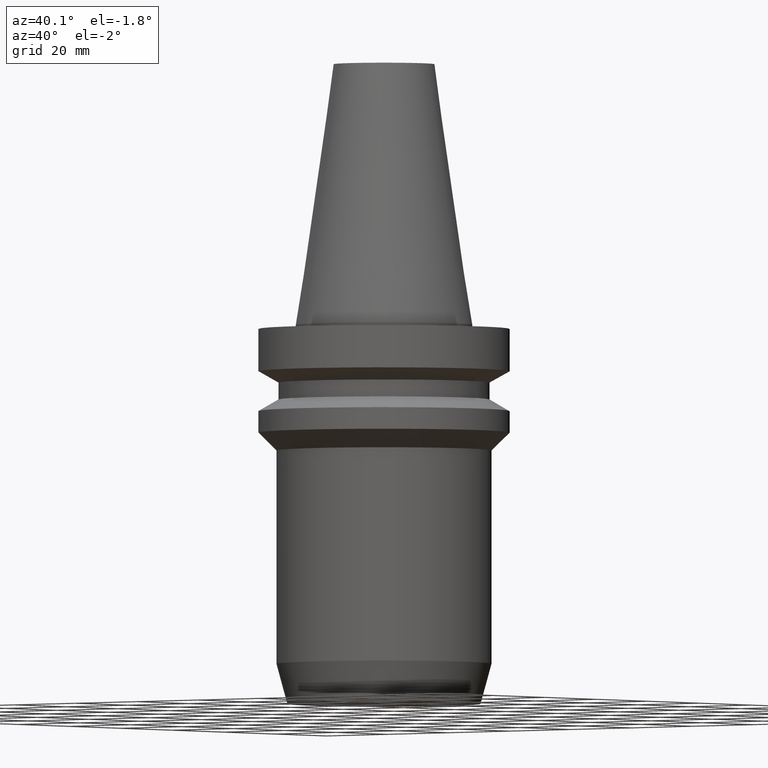
[diagram: clean part render]
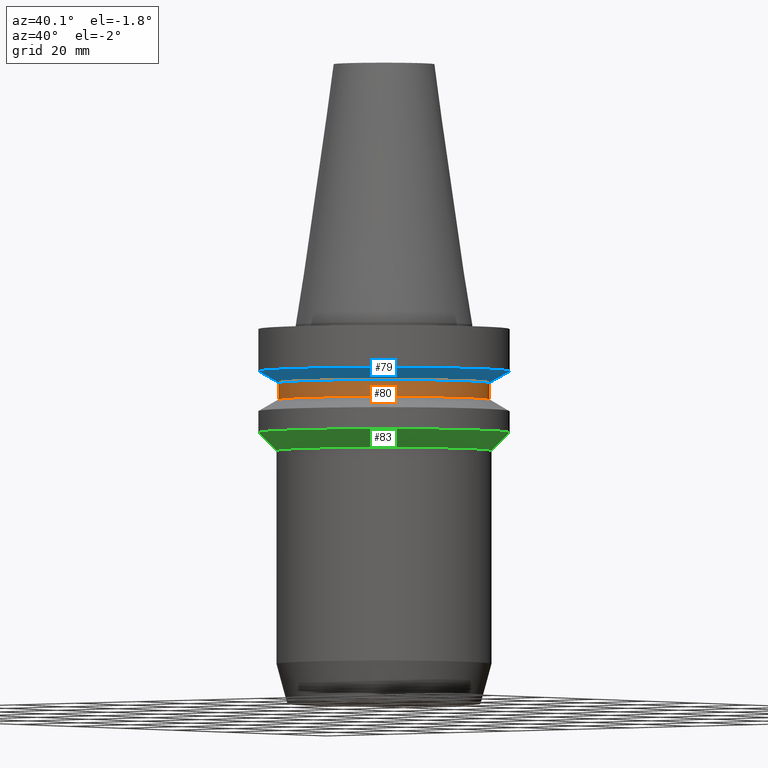
[diagram: same view with three faces highlighted in distinct colors, each labeled with its STEP entity id]
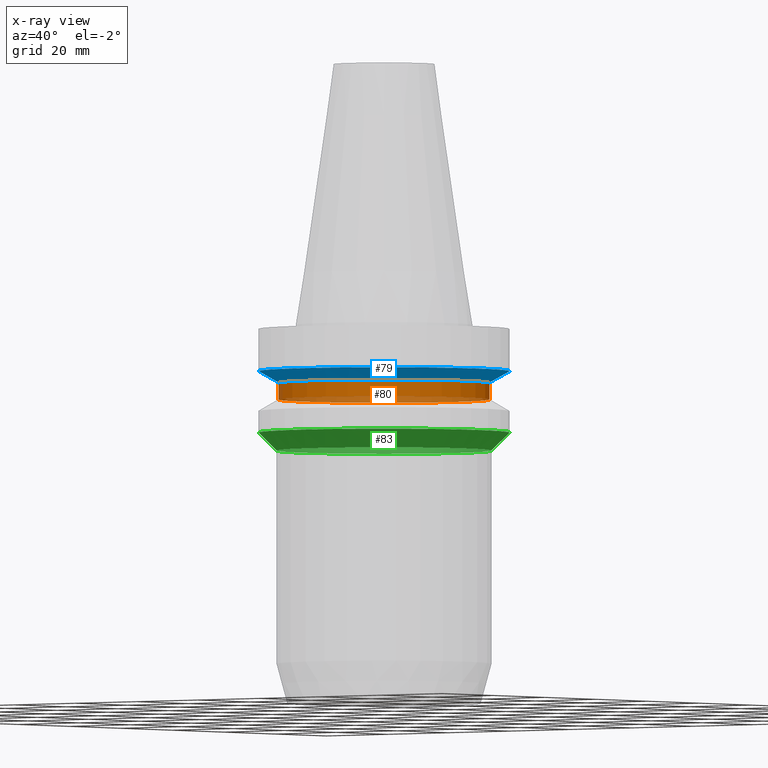
[diagram: x-ray of the same camera — body ghosted, the three highlighted faces saturated]
A machine part, auxiliary view with three faces highlighted in distinct colors.
The next image is the same camera in x-ray (body ghosted, the three faces saturated) — at least one of them is partly hidden behind the body in this view.
Their STEP definitions:

[orange] entity #80 — the highlighted cylindrical surface (bore or boss wall) has radius 26.5 mm, axis along (-0, -0, 1).
#80=ADVANCED_FACE('',(#103,#104),#105,.T.);
#103=FACE_BOUND('',#140,.T.);
#104=FACE_BOUND('',#141,.T.);
#105=CYLINDRICAL_SURFACE('',#142,26.5);
#140=EDGE_LOOP('',(#187));
#141=EDGE_LOOP('',(#188));
#142=AXIS2_PLACEMENT_3D('',#189,#190,#191);
#187=ORIENTED_EDGE('',*,*,#232,.F.);
#188=ORIENTED_EDGE('',*,*,#231,.T.);
#189=CARTESIAN_POINT('',(1.0164568432923E-015,2.03291368658461E-015,-16.6));
#190=DIRECTION('',(-6.12323399573677E-017,-1.22464679914735E-016,1.0));
#191=DIRECTION('',(-1.23259516440783E-032,1.0,1.22464679914735E-016));
#231=EDGE_CURVE('',#248,#248,#249,.T.);
#232=EDGE_CURVE('',#250,#250,#251,.T.);
#248=VERTEX_POINT('',#272);
#249=CIRCLE('',#273,26.5);
#250=VERTEX_POINT('',#274);
#251=CIRCLE('',#275,26.5);
#272=CARTESIAN_POINT('',(8.87057683541055E-016,26.5,-14.48675135));
#273=AXIS2_PLACEMENT_3D('',#301,#302,#303);
#274=CARTESIAN_POINT('',(1.14585600304355E-015,26.5,-18.71324865));
#275=AXIS2_PLACEMENT_3D('',#304,#305,#306);
#301=CARTESIAN_POINT('',(8.87057683541055E-016,1.77411536708211E-015,-14.48675135));
#302=DIRECTION('',(6.12323399573677E-017,1.22464679914735E-016,-1.0));
#303=DIRECTION('',(-1.23259516440783E-032,1.0,1.22464679914735E-016));
#304=CARTESIAN_POINT('',(1.14585600304355E-015,2.2917120060871E-015,-18.71324865));
#305=DIRECTION('',(6.12323399573677E-017,1.22464679914735E-016,-1.0));
#306=DIRECTION('',(-1.23259516440783E-032,1.0,1.22464679914735E-016));

[blue] entity #79 — the highlighted conical surface has half-angle 60 deg.
#79=ADVANCED_FACE('',(#100,#101),#102,.T.);
#100=FACE_BOUND('',#137,.T.);
#101=FACE_BOUND('',#138,.T.);
#102=CONICAL_SURFACE('',#139,29.0,1.04719755058882);
#137=EDGE_LOOP('',(#182));
#138=EDGE_LOOP('',(#183));
#139=AXIS2_PLACEMENT_3D('',#184,#185,#186);
#182=ORIENTED_EDGE('',*,*,#231,.F.);
#183=ORIENTED_EDGE('',*,*,#230,.T.);
#184=CARTESIAN_POINT('',(7.9867641352326E-016,1.59735282704652E-015,-13.043375675));
#185=DIRECTION('',(-6.12323399573677E-017,-1.22464679914735E-016,1.0));
#186=DIRECTION('',(-1.23259516440783E-032,1.0,1.22464679914735E-016));
#230=EDGE_CURVE('',#246,#246,#247,.T.);
#231=EDGE_CURVE('',#248,#248,#249,.T.);
#246=VERTEX_POINT('',#270);
#247=CIRCLE('',#271,31.5);
#248=VERTEX_POINT('',#272);
#249=CIRCLE('',#273,26.5);
#270=CARTESIAN_POINT('',(7.10295143505464E-016,31.5,-11.6));
#271=AXIS2_PLACEMENT_3D('',#298,#299,#300);
#272=CARTESIAN_POINT('',(8.87057683541055E-016,26.5,-14.48675135));
#273=AXIS2_PLACEMENT_3D('',#301,#302,#303);
#298=CARTESIAN_POINT('',(7.10295143505465E-016,1.42059028701093E-015,-11.6));
#299=DIRECTION('',(6.12323399573677E-017,1.22464679914735E-016,-1.0));
#300=DIRECTION('',(-1.23259516440783E-032,1.0,1.22464679914735E-016));
#301=CARTESIAN_POINT('',(8.87057683541055E-016,1.77411536708211E-015,-14.48675135));
#302=DIRECTION('',(6.12323399573677E-017,1.22464679914735E-016,-1.0));
#303=DIRECTION('',(-1.23259516440783E-032,1.0,1.22464679914735E-016));

[green] entity #83 — the highlighted conical surface has half-angle 45 deg.
#83=ADVANCED_FACE('',(#112,#113),#114,.T.);
#112=FACE_BOUND('',#149,.T.);
#113=FACE_BOUND('',#150,.T.);
#114=CONICAL_SURFACE('',#151,29.25,0.785398163397448);
#149=EDGE_LOOP('',(#202));
#150=EDGE_LOOP('',(#203));
#151=AXIS2_PLACEMENT_3D('',#204,#205,#206);
#202=ORIENTED_EDGE('',*,*,#235,.F.);
#203=ORIENTED_EDGE('',*,*,#234,.T.);
#204=CARTESIAN_POINT('',(1.791045943753E-015,3.58209188750601E-015,-29.25));
#205=DIRECTION('',(-6.12323399573677E-017,-1.22464679914735E-016,1.0));
#206=DIRECTION('',(-1.23259516440783E-032,1.0,1.22464679914735E-016));
#234=EDGE_CURVE('',#254,#254,#255,.T.);
#235=EDGE_CURVE('',#256,#256,#257,.T.);
#254=VERTEX_POINT('',#278);
#255=CIRCLE('',#279,31.5);
#256=VERTEX_POINT('',#280);
#257=CIRCLE('',#281,27.0);
#278=CARTESIAN_POINT('',(1.65327317884893E-015,31.5,-27.0));
#279=AXIS2_PLACEMENT_3D('',#310,#311,#312);
#280=CARTESIAN_POINT('',(1.92881870865708E-015,27.0,-31.5));
#281=AXIS2_PLACEMENT_3D('',#313,#314,#315);
#310=CARTESIAN_POINT('',(1.65327317884893E-015,3.30654635769785E-015,-27.0));
#311=DIRECTION('',(6.12323399573677E-017,1.22464679914735E-016,-1.0));
#312=DIRECTION('',(-1.23259516440783E-032,1.0,1.22464679914735E-016));
#313=CARTESIAN_POINT('',(1.92881870865708E-015,3.85763741731416E-015,-31.5));
#314=DIRECTION('',(6.12323399573677E-017,1.22464679914735E-016,-1.0));
#315=DIRECTION('',(-1.23259516440783E-032,1.0,1.22464679914735E-016));